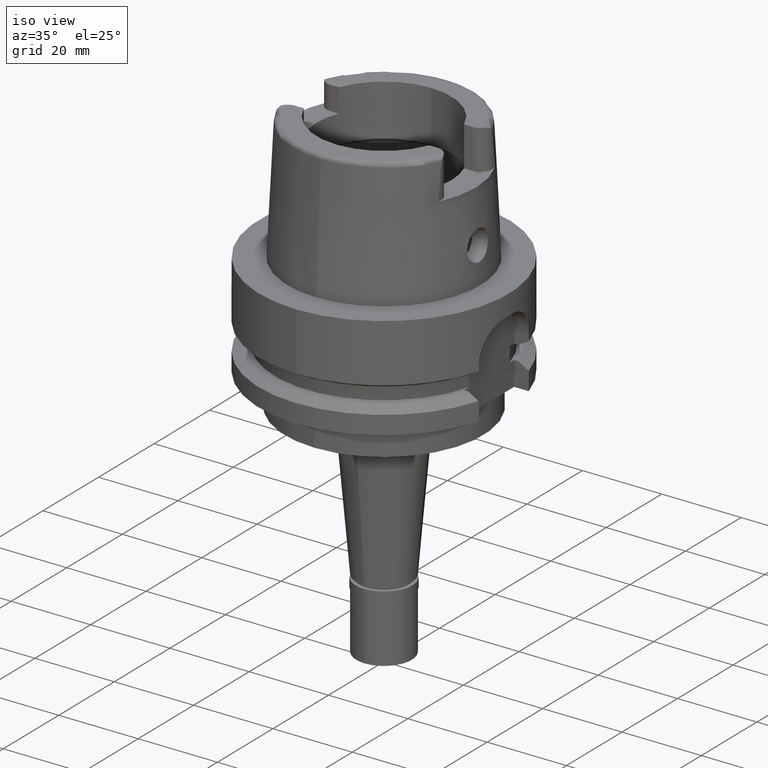
[diagram: clean part render]
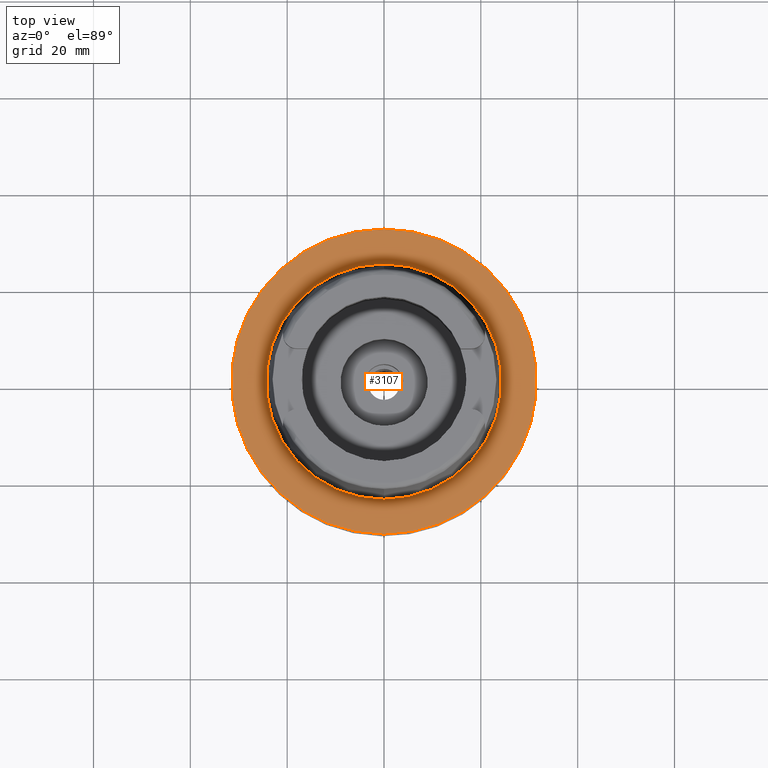
[diagram: tour spotlight — one face highlighted and labeled with its STEP entity id]
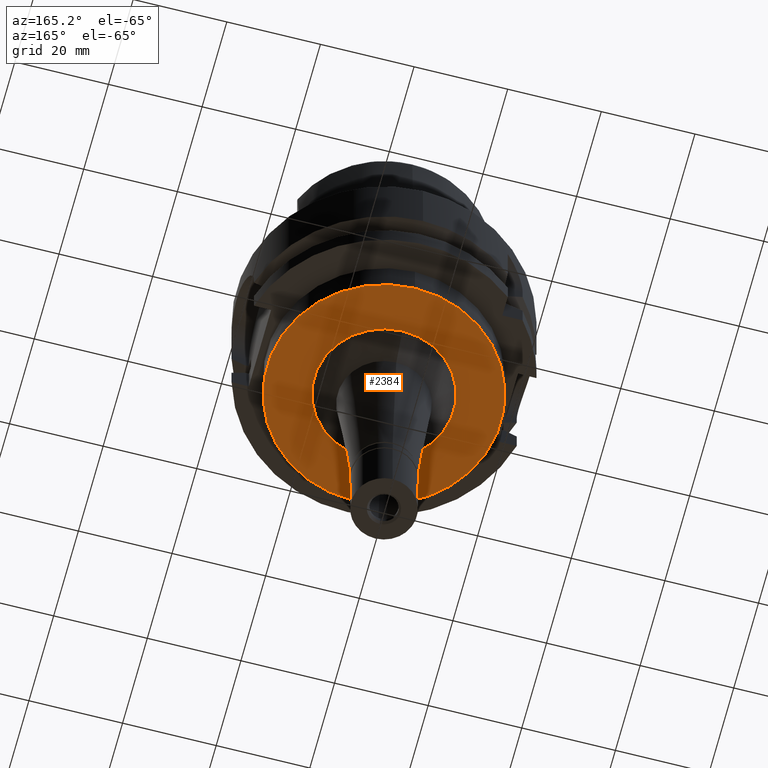
[diagram: tour spotlight — one face highlighted and labeled with its STEP entity id]
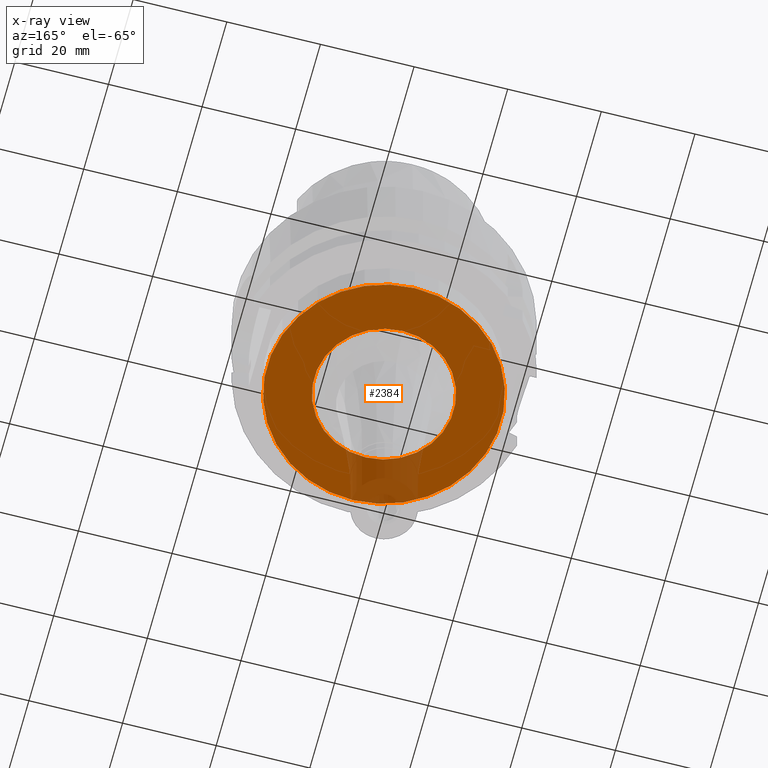
[diagram: x-ray of the same camera — body ghosted, this tour face saturated]
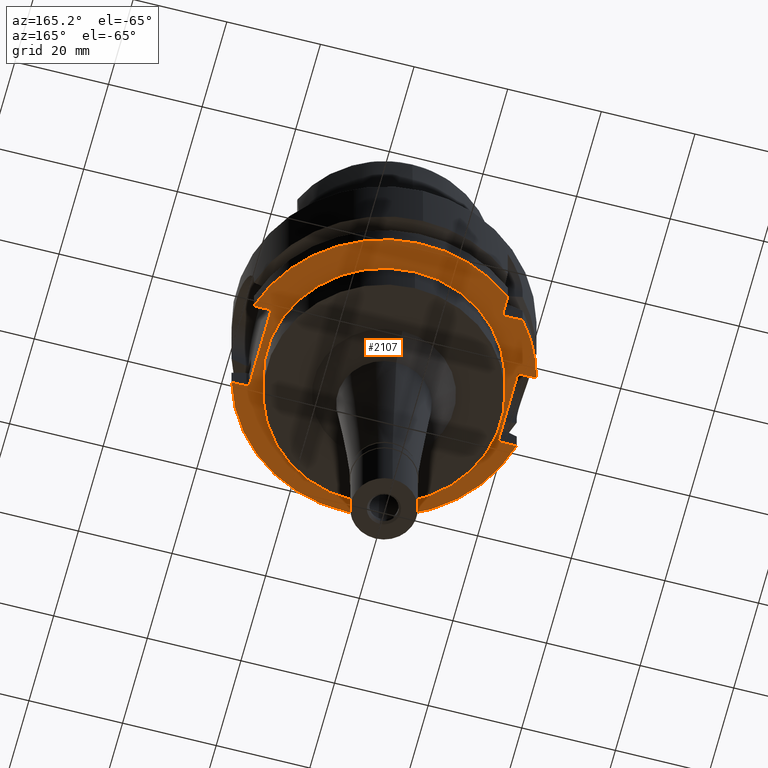
[diagram: tour spotlight — one face highlighted and labeled with its STEP entity id]
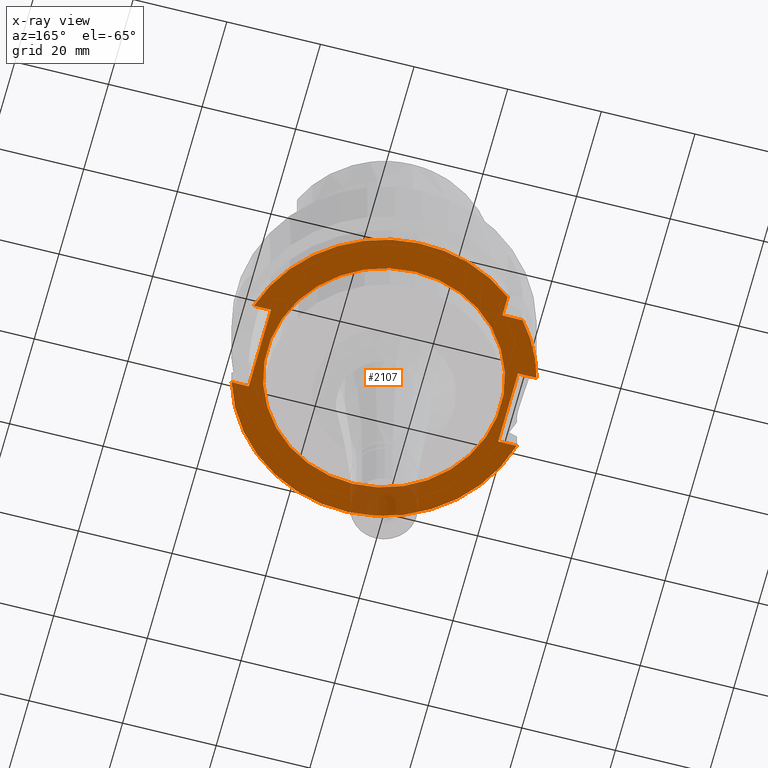
[diagram: x-ray of the same camera — body ghosted, this tour face saturated]
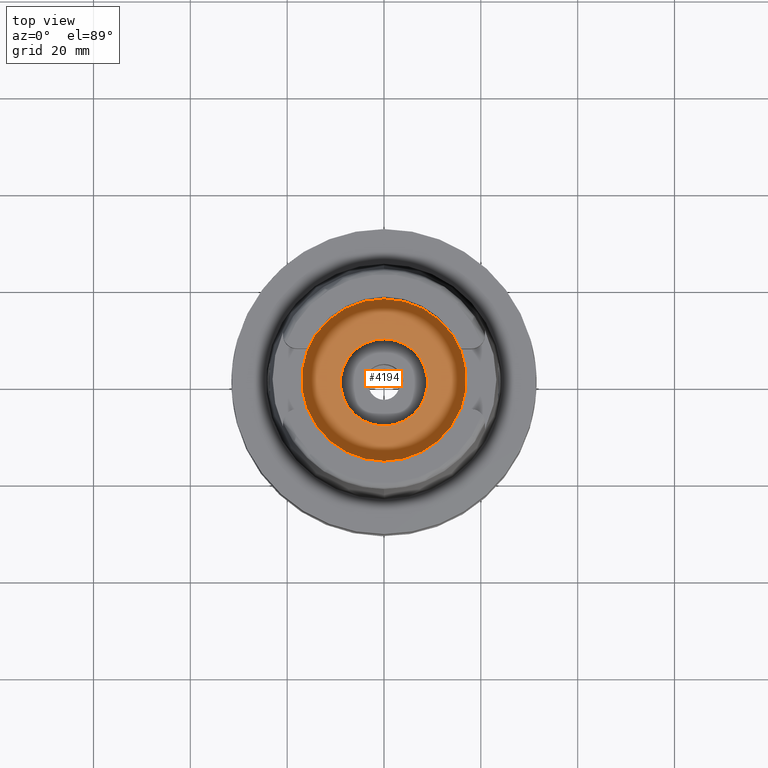
[diagram: tour spotlight — one face highlighted and labeled with its STEP entity id]
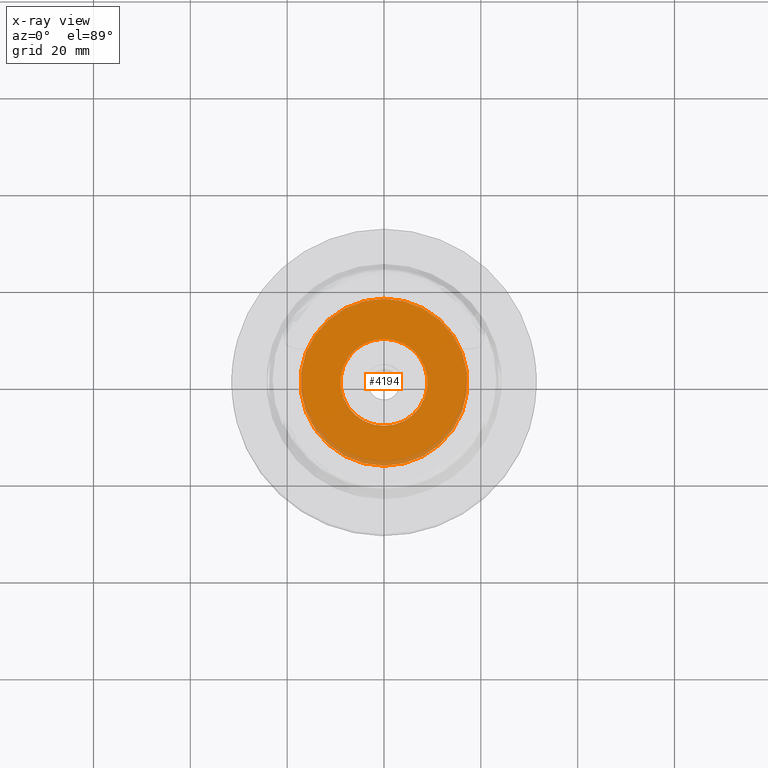
[diagram: x-ray of the same camera — body ghosted, this tour face saturated]
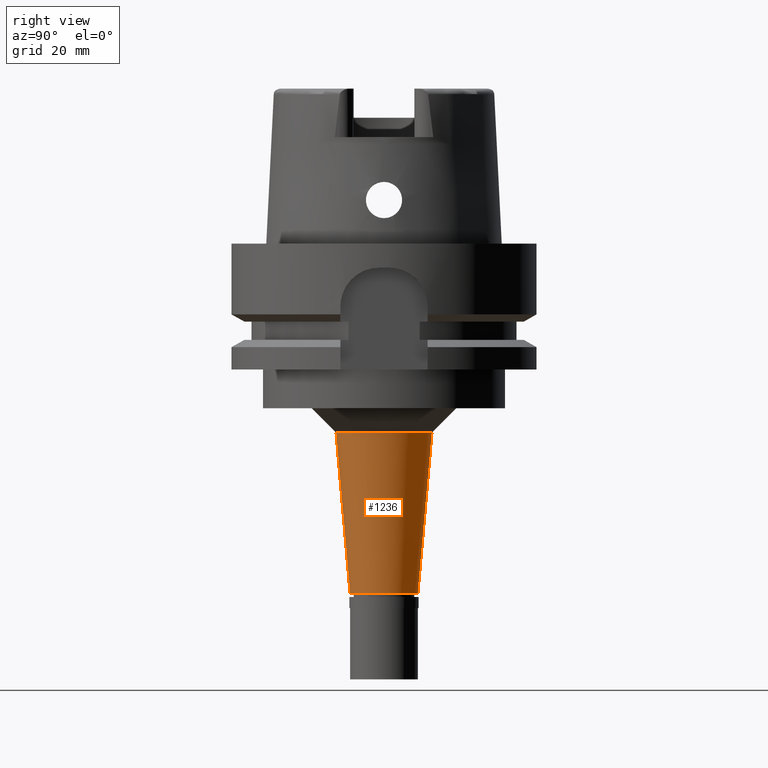
[diagram: tour spotlight — one face highlighted and labeled with its STEP entity id]
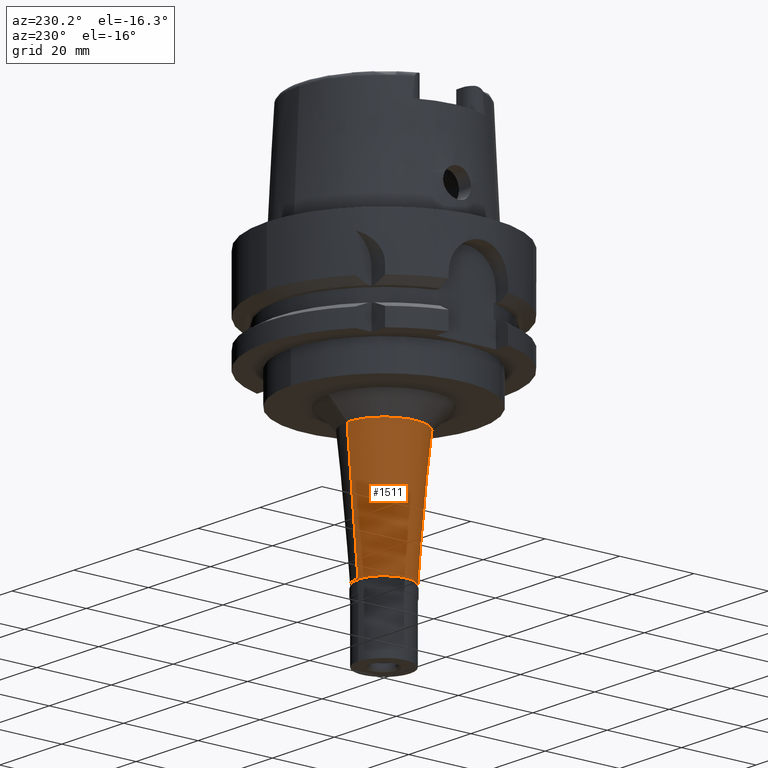
[diagram: tour spotlight — one face highlighted and labeled with its STEP entity id]
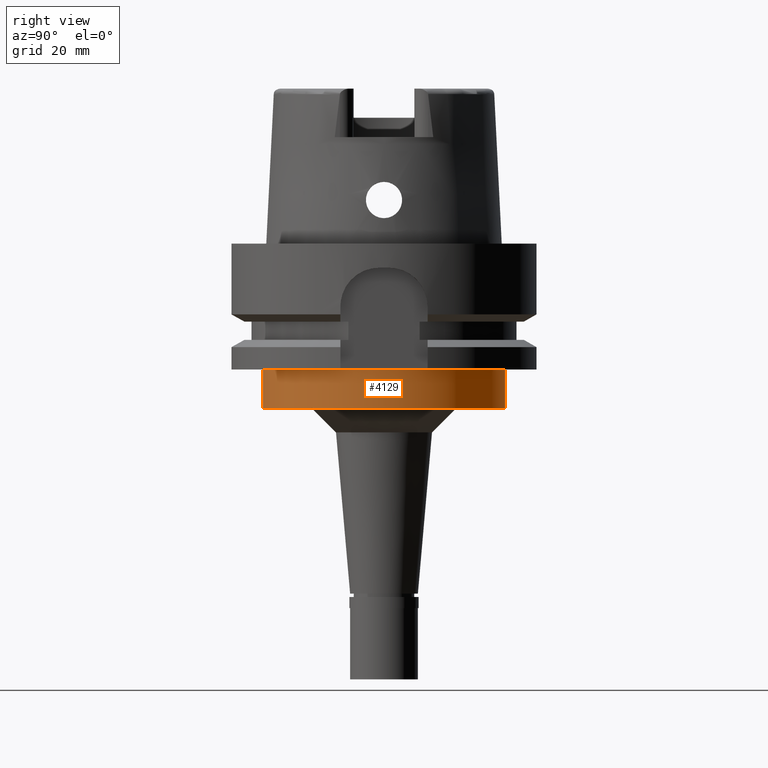
[diagram: tour spotlight — one face highlighted and labeled with its STEP entity id]
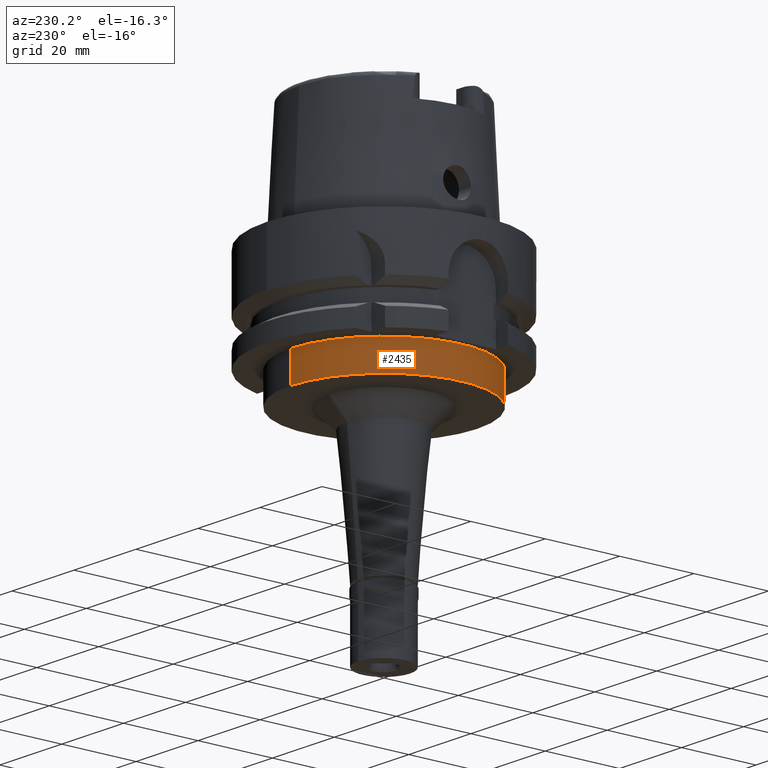
[diagram: tour spotlight — one face highlighted and labeled with its STEP entity id]
A machine part: a face-by-face anatomy tour. The part has 122 B-rep faces; the first image is the clean iso view, then the 8 largest visible faces are spotlighted one at a time (largest first), each with its STEP entity span.

Face 1 — top view, entity #3107. In plain terms, the highlighted planar face has unit normal (0, 0, -1).
Definition (entity closure, byte-faithful):
#28 = CARTESIAN_POINT ( 'NONE',  ( 0.0000000000000000000, -24.31503482328999866, 1.882938249763999678E-13 ) ) ;
#159 = ORIENTED_EDGE ( 'NONE', *, *, #2519, .F. ) ;
#268 = CARTESIAN_POINT ( 'NONE',  ( 0.0000000000000000000, 0.0000000000000000000, -8.526512829120999020E-14 ) ) ;
#716 = DIRECTION ( 'NONE',  ( 0.0000000000000000000, 0.0000000000000000000, -1.000000000000000000 ) ) ;
#727 = CIRCLE ( 'NONE', #3877, 31.50000000000000000 ) ;
#758 = AXIS2_PLACEMENT_3D ( 'NONE', #4545, #5055, #4141 ) ;
#769 = DIRECTION ( 'NONE',  ( 0.0000000000000000000, -1.000000000000000000, 0.0000000000000000000 ) ) ;
#1275 = EDGE_CURVE ( 'NONE', #2415, #3158, #3184, .T. ) ;
#1536 = DIRECTION ( 'NONE',  ( 0.0000000000000000000, -1.000000000000000000, 0.0000000000000000000 ) ) ;
#1553 = ORIENTED_EDGE ( 'NONE', *, *, #5075, .F. ) ;
#1609 = ORIENTED_EDGE ( 'NONE', *, *, #1275, .F. ) ;
#1719 = CARTESIAN_POINT ( 'NONE',  ( 0.0000000000000000000, 24.31503482328999866, 1.136868377215999875E-13 ) ) ;
#1720 = CARTESIAN_POINT ( 'NONE',  ( 0.0000000000000000000, 0.0000000000000000000, 0.0000000000000000000 ) ) ;
#1852 = CARTESIAN_POINT ( 'NONE',  ( 0.0000000000000000000, 0.0000000000000000000, 1.136868377215999875E-13 ) ) ;
#1964 = VERTEX_POINT ( 'NONE', #4305 ) ;
#2176 = CIRCLE ( 'NONE', #4704, 31.50000000000000000 ) ;
#2239 = EDGE_LOOP ( 'NONE', ( #4671, #1553 ) ) ;
#2415 = VERTEX_POINT ( 'NONE', #1719 ) ;
#2441 = EDGE_LOOP ( 'NONE', ( #1609, #159 ) ) ;
#2445 = CARTESIAN_POINT ( 'NONE',  ( 0.0000000000000000000, 31.50000000000000000, -8.526512829120999020E-14 ) ) ;
#2519 = EDGE_CURVE ( 'NONE', #3158, #2415, #3243, .T. ) ;
#2911 = FACE_OUTER_BOUND ( 'NONE', #2239, .T. ) ;
#3107 = ADVANCED_FACE ( 'NONE', ( #2911, #4705 ), #4619, .F. ) ;
#3158 = VERTEX_POINT ( 'NONE', #28 ) ;
#3184 = CIRCLE ( 'NONE', #758, 24.31503482328999866 ) ;
#3243 = CIRCLE ( 'NONE', #3873, 24.31503482328999866 ) ;
#3429 = AXIS2_PLACEMENT_3D ( 'NONE', #1720, #5532, #769 ) ;
#3648 = EDGE_CURVE ( 'NONE', #4426, #1964, #727, .T. ) ;
#3758 = DIRECTION ( 'NONE',  ( 0.0000000000000000000, 1.000000000000000000, 0.0000000000000000000 ) ) ;
#3873 = AXIS2_PLACEMENT_3D ( 'NONE', #1852, #4958, #1536 ) ;
#3877 = AXIS2_PLACEMENT_3D ( 'NONE', #4202, #716, #3758 ) ;
#4093 = DIRECTION ( 'NONE',  ( 0.0000000000000000000, -1.000000000000000000, 0.0000000000000000000 ) ) ;
#4141 = DIRECTION ( 'NONE',  ( 0.0000000000000000000, 1.000000000000000000, 0.0000000000000000000 ) ) ;
#4202 = CARTESIAN_POINT ( 'NONE',  ( 0.0000000000000000000, 0.0000000000000000000, -8.526512829120999020E-14 ) ) ;
#4305 = CARTESIAN_POINT ( 'NONE',  ( 0.0000000000000000000, -31.50000000000000000, -8.526512829120999020E-14 ) ) ;
#4426 = VERTEX_POINT ( 'NONE', #2445 ) ;
#4545 = CARTESIAN_POINT ( 'NONE',  ( 0.0000000000000000000, 0.0000000000000000000, 1.136868377215999875E-13 ) ) ;
#4619 = PLANE ( 'NONE',  #3429 ) ;
#4671 = ORIENTED_EDGE ( 'NONE', *, *, #3648, .F. ) ;
#4704 = AXIS2_PLACEMENT_3D ( 'NONE', #268, #5031, #4093 ) ;
#4705 = FACE_BOUND ( 'NONE', #2441, .T. ) ;
#4958 = DIRECTION ( 'NONE',  ( 0.0000000000000000000, 0.0000000000000000000, 1.000000000000000000 ) ) ;
#5031 = DIRECTION ( 'NONE',  ( 0.0000000000000000000, 0.0000000000000000000, -1.000000000000000000 ) ) ;
#5055 = DIRECTION ( 'NONE',  ( 0.0000000000000000000, 0.0000000000000000000, 1.000000000000000000 ) ) ;
#5075 = EDGE_CURVE ( 'NONE', #1964, #4426, #2176, .T. ) ;
#5532 = DIRECTION ( 'NONE',  ( 0.0000000000000000000, 0.0000000000000000000, -1.000000000000000000 ) ) ;

Face 2 — auxiliary view, entity #2384. An x-ray twin of the same camera follows (body ghosted, this face saturated) — the face is partly hidden behind the body. In plain terms, the highlighted planar face has unit normal (0, 0, -1).
Definition (entity closure, byte-faithful):
#284 = CARTESIAN_POINT ( 'NONE',  ( 0.0000000000000000000, 25.00000000000000000, -34.00000000000000000 ) ) ;
#315 = EDGE_LOOP ( 'NONE', ( #429, #642 ) ) ;
#429 = ORIENTED_EDGE ( 'NONE', *, *, #966, .F. ) ;
#534 = FACE_BOUND ( 'NONE', #315, .T. ) ;
#642 = ORIENTED_EDGE ( 'NONE', *, *, #3557, .F. ) ;
#943 = DIRECTION ( 'NONE',  ( 0.0000000000000000000, 1.000000000000000000, 0.0000000000000000000 ) ) ;
#966 = EDGE_CURVE ( 'NONE', #2177, #988, #4711, .T. ) ;
#988 = VERTEX_POINT ( 'NONE', #1311 ) ;
#1148 = CARTESIAN_POINT ( 'NONE',  ( 0.0000000000000000000, 0.0000000000000000000, -34.00000000000000000 ) ) ;
#1288 = DIRECTION ( 'NONE',  ( 0.0000000000000000000, -1.000000000000000000, 0.0000000000000000000 ) ) ;
#1311 = CARTESIAN_POINT ( 'NONE',  ( 0.0000000000000000000, -14.91337249540999998, -34.00000000000000000 ) ) ;
#1339 = EDGE_CURVE ( 'NONE', #5564, #4945, #2187, .T. ) ;
#1368 = CARTESIAN_POINT ( 'NONE',  ( 0.0000000000000000000, 0.0000000000000000000, -34.00000000000000000 ) ) ;
#1373 = ORIENTED_EDGE ( 'NONE', *, *, #5006, .F. ) ;
#1381 = AXIS2_PLACEMENT_3D ( 'NONE', #4598, #2402, #4115 ) ;
#1446 = CARTESIAN_POINT ( 'NONE',  ( 0.0000000000000000000, 0.0000000000000000000, -34.00000000000000000 ) ) ;
#1526 = AXIS2_PLACEMENT_3D ( 'NONE', #1446, #2381, #4015 ) ;
#1531 = AXIS2_PLACEMENT_3D ( 'NONE', #1368, #1748, #1288 ) ;
#1748 = DIRECTION ( 'NONE',  ( 0.0000000000000000000, 0.0000000000000000000, -1.000000000000000000 ) ) ;
#1782 = ORIENTED_EDGE ( 'NONE', *, *, #1339, .F. ) ;
#1907 = DIRECTION ( 'NONE',  ( 0.0000000000000000000, 1.000000000000000000, 0.0000000000000000000 ) ) ;
#2135 = PLANE ( 'NONE',  #1531 ) ;
#2177 = VERTEX_POINT ( 'NONE', #5131 ) ;
#2187 = CIRCLE ( 'NONE', #1381, 25.00000000000000000 ) ;
#2381 = DIRECTION ( 'NONE',  ( 0.0000000000000000000, 0.0000000000000000000, -1.000000000000000000 ) ) ;
#2384 = ADVANCED_FACE ( 'NONE', ( #4739, #534 ), #2135, .T. ) ;
#2402 = DIRECTION ( 'NONE',  ( 0.0000000000000000000, 0.0000000000000000000, 1.000000000000000000 ) ) ;
#2447 = AXIS2_PLACEMENT_3D ( 'NONE', #1148, #4965, #1907 ) ;
#3090 = DIRECTION ( 'NONE',  ( 0.0000000000000000000, 0.0000000000000000000, -1.000000000000000000 ) ) ;
#3557 = EDGE_CURVE ( 'NONE', #988, #2177, #3959, .T. ) ;
#3959 = CIRCLE ( 'NONE', #1526, 14.91337249540999998 ) ;
#4015 = DIRECTION ( 'NONE',  ( 0.0000000000000000000, -1.000000000000000000, 0.0000000000000000000 ) ) ;
#4115 = DIRECTION ( 'NONE',  ( 0.0000000000000000000, -1.000000000000000000, 0.0000000000000000000 ) ) ;
#4526 = AXIS2_PLACEMENT_3D ( 'NONE', #5178, #3090, #943 ) ;
#4598 = CARTESIAN_POINT ( 'NONE',  ( 0.0000000000000000000, 0.0000000000000000000, -34.00000000000000000 ) ) ;
#4711 = CIRCLE ( 'NONE', #4526, 14.91337249540999998 ) ;
#4739 = FACE_OUTER_BOUND ( 'NONE', #5471, .T. ) ;
#4791 = CIRCLE ( 'NONE', #2447, 25.00000000000000000 ) ;
#4945 = VERTEX_POINT ( 'NONE', #284 ) ;
#4965 = DIRECTION ( 'NONE',  ( 0.0000000000000000000, 0.0000000000000000000, 1.000000000000000000 ) ) ;
#5006 = EDGE_CURVE ( 'NONE', #4945, #5564, #4791, .T. ) ;
#5131 = CARTESIAN_POINT ( 'NONE',  ( 0.0000000000000000000, 14.91337249540999998, -34.00000000000000000 ) ) ;
#5178 = CARTESIAN_POINT ( 'NONE',  ( 0.0000000000000000000, 0.0000000000000000000, -34.00000000000000000 ) ) ;
#5389 = CARTESIAN_POINT ( 'NONE',  ( 0.0000000000000000000, -25.00000000000000000, -34.00000000000000000 ) ) ;
#5471 = EDGE_LOOP ( 'NONE', ( #1373, #1782 ) ) ;
#5564 = VERTEX_POINT ( 'NONE', #5389 ) ;

Face 3 — auxiliary view, entity #2107. An x-ray twin of the same camera follows (body ghosted, this face saturated) — the face is partly hidden behind the body. In plain terms, the highlighted planar face has unit normal (0, 0, -1).
Definition (entity closure, byte-faithful):
#16 = ORIENTED_EDGE ( 'NONE', *, *, #2482, .F. ) ;
#31 = EDGE_CURVE ( 'NONE', #636, #4066, #606, .T. ) ;
#81 = LINE ( 'NONE', #4763, #1350 ) ;
#82 = ORIENTED_EDGE ( 'NONE', *, *, #4102, .F. ) ;
#115 = VERTEX_POINT ( 'NONE', #4114 ) ;
#231 = ORIENTED_EDGE ( 'NONE', *, *, #2410, .T. ) ;
#259 = CARTESIAN_POINT ( 'NONE',  ( 0.0000000000000000000, -25.00000000000000000, -26.00000000000000000 ) ) ;
#334 = LINE ( 'NONE', #5487, #4689 ) ;
#377 = DIRECTION ( 'NONE',  ( -1.000000000000000000, -1.540316790609000194E-13, 0.0000000000000000000 ) ) ;
#411 = CIRCLE ( 'NONE', #1840, 25.00000000000000000 ) ;
#546 = CARTESIAN_POINT ( 'NONE',  ( -26.50000000000000000, 8.000000000000000000, -26.00000000000000000 ) ) ;
#606 = LINE ( 'NONE', #546, #3803 ) ;
#636 = VERTEX_POINT ( 'NONE', #1077 ) ;
#681 = CARTESIAN_POINT ( 'NONE',  ( 26.50000000000000000, -9.000000000000000000, -26.00000000000000000 ) ) ;
#773 = DIRECTION ( 'NONE',  ( 0.0000000000000000000, -1.000000000000000000, 0.0000000000000000000 ) ) ;
#789 = VERTEX_POINT ( 'NONE', #5065 ) ;
#1076 = AXIS2_PLACEMENT_3D ( 'NONE', #3208, #2785, #2306 ) ;
#1077 = CARTESIAN_POINT ( 'NONE',  ( -26.50000000000000000, 8.000000000000000000, -26.00000000000000000 ) ) ;
#1128 = DIRECTION ( 'NONE',  ( -1.000000000000000000, -7.226999566092000914E-14, 0.0000000000000000000 ) ) ;
#1154 = CARTESIAN_POINT ( 'NONE',  ( -20.00000000000000000, 20.00000000000000000, -26.00000000000000000 ) ) ;
#1205 = CIRCLE ( 'NONE', #1922, 25.00000000000000000 ) ;
#1214 = CARTESIAN_POINT ( 'NONE',  ( 30.18691769625000276, 9.000000000000000000, -26.00000000000000000 ) ) ;
#1233 = DIRECTION ( 'NONE',  ( 0.0000000000000000000, 0.0000000000000000000, -1.000000000000000000 ) ) ;
#1280 = DIRECTION ( 'NONE',  ( 0.0000000000000000000, 1.000000000000000000, 0.0000000000000000000 ) ) ;
#1346 = VECTOR ( 'NONE', #4064, 1000.000000000000000 ) ;
#1350 = VECTOR ( 'NONE', #2616, 1000.000000000000000 ) ;
#1363 = DIRECTION ( 'NONE',  ( 0.0000000000000000000, 0.0000000000000000000, 1.000000000000000000 ) ) ;
#1390 = ORIENTED_EDGE ( 'NONE', *, *, #5490, .F. ) ;
#1434 = CARTESIAN_POINT ( 'NONE',  ( 30.18691769625000276, -9.000000000000000000, -26.00000000000000000 ) ) ;
#1491 = ORIENTED_EDGE ( 'NONE', *, *, #3719, .F. ) ;
#1493 = DIRECTION ( 'NONE',  ( -0.7725773665802099233, 0.6349206349206079070, 0.0000000000000000000 ) ) ;
#1615 = DIRECTION ( 'NONE',  ( 0.0000000000000000000, 1.000000000000000000, 0.0000000000000000000 ) ) ;
#1649 = CARTESIAN_POINT ( 'NONE',  ( -26.50000000000000000, -8.000000000000000000, -26.00000000000000000 ) ) ;
#1655 = VECTOR ( 'NONE', #1128, 1000.000000000000000 ) ;
#1687 = EDGE_CURVE ( 'NONE', #4345, #115, #1205, .T. ) ;
#1722 = CIRCLE ( 'NONE', #2157, 31.50000000000000000 ) ;
#1758 = EDGE_CURVE ( 'NONE', #3670, #2553, #4220, .T. ) ;
#1840 = AXIS2_PLACEMENT_3D ( 'NONE', #4362, #3050, #4415 ) ;
#1858 = FACE_OUTER_BOUND ( 'NONE', #2606, .T. ) ;
#1922 = AXIS2_PLACEMENT_3D ( 'NONE', #4195, #5506, #773 ) ;
#1930 = EDGE_CURVE ( 'NONE', #115, #4345, #411, .T. ) ;
#2107 = ADVANCED_FACE ( 'NONE', ( #1858, #3579 ), #5023, .T. ) ;
#2157 = AXIS2_PLACEMENT_3D ( 'NONE', #4352, #1363, #1280 ) ;
#2164 = EDGE_CURVE ( 'NONE', #4184, #2882, #5046, .T. ) ;
#2169 = ORIENTED_EDGE ( 'NONE', *, *, #1687, .F. ) ;
#2228 = LINE ( 'NONE', #3056, #2892 ) ;
#2246 = EDGE_LOOP ( 'NONE', ( #2901, #2169 ) ) ;
#2306 = DIRECTION ( 'NONE',  ( 0.0000000000000000000, -1.000000000000000000, 0.0000000000000000000 ) ) ;
#2316 = CARTESIAN_POINT ( 'NONE',  ( 26.50000000000000000, 9.000000000000000000, -26.00000000000000000 ) ) ;
#2321 = DIRECTION ( 'NONE',  ( -1.000000000000000000, 8.686570378870000015E-14, 0.0000000000000000000 ) ) ;
#2410 = EDGE_CURVE ( 'NONE', #2749, #636, #81, .T. ) ;
#2482 = EDGE_CURVE ( 'NONE', #2506, #789, #2708, .T. ) ;
#2506 = VERTEX_POINT ( 'NONE', #4022 ) ;
#2510 = ORIENTED_EDGE ( 'NONE', *, *, #1758, .F. ) ;
#2553 = VERTEX_POINT ( 'NONE', #3257 ) ;
#2566 = CARTESIAN_POINT ( 'NONE',  ( 30.18691769625000276, 9.000000000000000000, -26.00000000000000000 ) ) ;
#2606 = EDGE_LOOP ( 'NONE', ( #5308, #3770, #1491, #1390, #16, #3286, #231, #4666, #82, #2510, #5214 ) ) ;
#2616 = DIRECTION ( 'NONE',  ( 0.0000000000000000000, 1.000000000000000000, 0.0000000000000000000 ) ) ;
#2656 = EDGE_CURVE ( 'NONE', #4184, #2662, #1722, .T. ) ;
#2662 = VERTEX_POINT ( 'NONE', #5574 ) ;
#2684 = DIRECTION ( 'NONE',  ( 0.0000000000000000000, 0.0000000000000000000, 1.000000000000000000 ) ) ;
#2708 = CIRCLE ( 'NONE', #1076, 31.50000000000000000 ) ;
#2749 = VERTEX_POINT ( 'NONE', #1649 ) ;
#2785 = DIRECTION ( 'NONE',  ( 0.0000000000000000000, 0.0000000000000000000, 1.000000000000000000 ) ) ;
#2882 = VERTEX_POINT ( 'NONE', #2316 ) ;
#2890 = AXIS2_PLACEMENT_3D ( 'NONE', #3746, #1233, #5501 ) ;
#2892 = VECTOR ( 'NONE', #3446, 1000.000000000000000 ) ;
#2901 = ORIENTED_EDGE ( 'NONE', *, *, #1930, .F. ) ;
#2949 = CARTESIAN_POINT ( 'NONE',  ( -20.00000000000000000, 20.00000000000000000, -26.00000000000000000 ) ) ;
#2991 = AXIS2_PLACEMENT_3D ( 'NONE', #4483, #2684, #1493 ) ;
#3050 = DIRECTION ( 'NONE',  ( 0.0000000000000000000, 0.0000000000000000000, -1.000000000000000000 ) ) ;
#3056 = CARTESIAN_POINT ( 'NONE',  ( -20.00000000000000000, 20.00000000000000000, -26.00000000000000000 ) ) ;
#3117 = CARTESIAN_POINT ( 'NONE',  ( -30.46719547316000032, 8.000000000000000000, -26.00000000000000000 ) ) ;
#3163 = LINE ( 'NONE', #1434, #1655 ) ;
#3171 = CARTESIAN_POINT ( 'NONE',  ( -26.50000000000000000, -8.000000000000000000, -26.00000000000000000 ) ) ;
#3208 = CARTESIAN_POINT ( 'NONE',  ( 0.0000000000000000000, 0.0000000000000000000, -26.00000000000000000 ) ) ;
#3257 = CARTESIAN_POINT ( 'NONE',  ( -24.33618704727619786, 19.99999999999964828, -26.00000000000000000 ) ) ;
#3286 = ORIENTED_EDGE ( 'NONE', *, *, #3481, .F. ) ;
#3343 = CIRCLE ( 'NONE', #2991, 31.50000000000000711 ) ;
#3446 = DIRECTION ( 'NONE',  ( 1.540316790609000194E-13, 1.000000000000000000, 0.0000000000000000000 ) ) ;
#3481 = EDGE_CURVE ( 'NONE', #2749, #2506, #3797, .T. ) ;
#3579 = FACE_BOUND ( 'NONE', #2246, .T. ) ;
#3670 = VERTEX_POINT ( 'NONE', #2949 ) ;
#3719 = EDGE_CURVE ( 'NONE', #5486, #2882, #334, .T. ) ;
#3746 = CARTESIAN_POINT ( 'NONE',  ( 0.0000000000000000000, 0.0000000000000000000, -26.00000000000000000 ) ) ;
#3770 = ORIENTED_EDGE ( 'NONE', *, *, #2164, .T. ) ;
#3788 = EDGE_CURVE ( 'NONE', #3670, #2662, #2228, .T. ) ;
#3797 = LINE ( 'NONE', #3171, #1346 ) ;
#3803 = VECTOR ( 'NONE', #2321, 1000.000000000000000 ) ;
#4022 = CARTESIAN_POINT ( 'NONE',  ( -30.46719547316000032, -8.000000000000000000, -26.00000000000000000 ) ) ;
#4064 = DIRECTION ( 'NONE',  ( -1.000000000000000000, -8.776122650817999518E-14, 0.0000000000000000000 ) ) ;
#4066 = VERTEX_POINT ( 'NONE', #3117 ) ;
#4102 = EDGE_CURVE ( 'NONE', #2553, #4066, #3343, .T. ) ;
#4114 = CARTESIAN_POINT ( 'NONE',  ( 0.0000000000000000000, 25.00000000000000000, -26.00000000000000000 ) ) ;
#4184 = VERTEX_POINT ( 'NONE', #1214 ) ;
#4195 = CARTESIAN_POINT ( 'NONE',  ( 0.0000000000000000000, 0.0000000000000000000, -26.00000000000000000 ) ) ;
#4220 = LINE ( 'NONE', #1154, #4537 ) ;
#4345 = VERTEX_POINT ( 'NONE', #259 ) ;
#4352 = CARTESIAN_POINT ( 'NONE',  ( 0.0000000000000000000, 0.0000000000000000000, -26.00000000000000000 ) ) ;
#4362 = CARTESIAN_POINT ( 'NONE',  ( 0.0000000000000000000, 0.0000000000000000000, -26.00000000000000000 ) ) ;
#4415 = DIRECTION ( 'NONE',  ( 0.0000000000000000000, 1.000000000000000000, 0.0000000000000000000 ) ) ;
#4483 = CARTESIAN_POINT ( 'NONE',  ( 0.0000000000000000000, 0.0000000000000000000, -26.00000000000000000 ) ) ;
#4537 = VECTOR ( 'NONE', #377, 1000.000000000000000 ) ;
#4666 = ORIENTED_EDGE ( 'NONE', *, *, #31, .T. ) ;
#4669 = DIRECTION ( 'NONE',  ( -1.000000000000000000, 6.889739586341000002E-14, 0.0000000000000000000 ) ) ;
#4689 = VECTOR ( 'NONE', #1615, 1000.000000000000000 ) ;
#4763 = CARTESIAN_POINT ( 'NONE',  ( -26.50000000000000000, -8.000000000000000000, -26.00000000000000000 ) ) ;
#4874 = VECTOR ( 'NONE', #4669, 1000.000000000000000 ) ;
#5023 = PLANE ( 'NONE',  #2890 ) ;
#5046 = LINE ( 'NONE', #2566, #4874 ) ;
#5065 = CARTESIAN_POINT ( 'NONE',  ( 30.18691769625000276, -9.000000000000000000, -26.00000000000000000 ) ) ;
#5214 = ORIENTED_EDGE ( 'NONE', *, *, #3788, .T. ) ;
#5308 = ORIENTED_EDGE ( 'NONE', *, *, #2656, .F. ) ;
#5486 = VERTEX_POINT ( 'NONE', #681 ) ;
#5487 = CARTESIAN_POINT ( 'NONE',  ( 26.50000000000000000, -9.000000000000000000, -26.00000000000000000 ) ) ;
#5490 = EDGE_CURVE ( 'NONE', #789, #5486, #3163, .T. ) ;
#5501 = DIRECTION ( 'NONE',  ( 0.0000000000000000000, -1.000000000000000000, 0.0000000000000000000 ) ) ;
#5506 = DIRECTION ( 'NONE',  ( 0.0000000000000000000, 0.0000000000000000000, -1.000000000000000000 ) ) ;
#5574 = CARTESIAN_POINT ( 'NONE',  ( -20.00000000000000000, 24.33618704727999926, -26.00000000000000000 ) ) ;

Face 4 — top view, entity #4194. An x-ray twin of the same camera follows (body ghosted, this face saturated) — the face is partly hidden behind the body. In plain terms, the highlighted planar face has unit normal (0, 0, -1).
Definition (entity closure, byte-faithful):
#233 = CARTESIAN_POINT ( 'NONE',  ( 0.0000000000000000000, 9.000000000000000000, -9.950000000000001066 ) ) ;
#312 = CARTESIAN_POINT ( 'NONE',  ( 0.0000000000000000000, 0.0000000000000000000, -9.950000000000001066 ) ) ;
#497 = DIRECTION ( 'NONE',  ( 0.0000000000000000000, 1.000000000000000000, 0.0000000000000000000 ) ) ;
#587 = CIRCLE ( 'NONE', #5452, 9.000000000000000000 ) ;
#737 = AXIS2_PLACEMENT_3D ( 'NONE', #1808, #1329, #497 ) ;
#760 = EDGE_LOOP ( 'NONE', ( #924, #5364 ) ) ;
#768 = EDGE_CURVE ( 'NONE', #3203, #4868, #4167, .T. ) ;
#772 = DIRECTION ( 'NONE',  ( 0.0000000000000000000, -1.000000000000000000, 0.0000000000000000000 ) ) ;
#797 = CARTESIAN_POINT ( 'NONE',  ( 0.0000000000000000000, 0.0000000000000000000, -9.950000000000001066 ) ) ;
#856 = ORIENTED_EDGE ( 'NONE', *, *, #3929, .F. ) ;
#882 = DIRECTION ( 'NONE',  ( 0.0000000000000000000, 0.0000000000000000000, 1.000000000000000000 ) ) ;
#924 = ORIENTED_EDGE ( 'NONE', *, *, #1862, .F. ) ;
#1065 = EDGE_LOOP ( 'NONE', ( #856, #3475 ) ) ;
#1329 = DIRECTION ( 'NONE',  ( 0.0000000000000000000, 0.0000000000000000000, -1.000000000000000000 ) ) ;
#1682 = CARTESIAN_POINT ( 'NONE',  ( 0.0000000000000000000, 0.0000000000000000000, -9.950000000000001066 ) ) ;
#1808 = CARTESIAN_POINT ( 'NONE',  ( 0.0000000000000000000, 0.0000000000000000000, -9.950000000000001066 ) ) ;
#1817 = AXIS2_PLACEMENT_3D ( 'NONE', #312, #2469, #2021 ) ;
#1862 = EDGE_CURVE ( 'NONE', #4868, #3203, #587, .T. ) ;
#1912 = AXIS2_PLACEMENT_3D ( 'NONE', #1682, #3394, #4605 ) ;
#1947 = CARTESIAN_POINT ( 'NONE',  ( 0.0000000000000000000, -9.000000000000000000, -9.950000000000001066 ) ) ;
#2021 = DIRECTION ( 'NONE',  ( 0.0000000000000000000, -1.000000000000000000, 0.0000000000000000000 ) ) ;
#2170 = VERTEX_POINT ( 'NONE', #3714 ) ;
#2469 = DIRECTION ( 'NONE',  ( 0.0000000000000000000, 0.0000000000000000000, -1.000000000000000000 ) ) ;
#2508 = DIRECTION ( 'NONE',  ( 0.0000000000000000000, 0.0000000000000000000, -1.000000000000000000 ) ) ;
#2827 = PLANE ( 'NONE',  #3164 ) ;
#2915 = FACE_OUTER_BOUND ( 'NONE', #1065, .T. ) ;
#3077 = CARTESIAN_POINT ( 'NONE',  ( 0.0000000000000000000, 0.0000000000000000000, -9.950000000000001066 ) ) ;
#3164 = AXIS2_PLACEMENT_3D ( 'NONE', #797, #2508, #772 ) ;
#3203 = VERTEX_POINT ( 'NONE', #1947 ) ;
#3297 = CARTESIAN_POINT ( 'NONE',  ( 0.0000000000000000000, 17.25000000000000000, -9.950000000000001066 ) ) ;
#3394 = DIRECTION ( 'NONE',  ( 0.0000000000000000000, 0.0000000000000000000, 1.000000000000000000 ) ) ;
#3438 = DIRECTION ( 'NONE',  ( 0.0000000000000000000, 1.000000000000000000, 0.0000000000000000000 ) ) ;
#3475 = ORIENTED_EDGE ( 'NONE', *, *, #4761, .F. ) ;
#3714 = CARTESIAN_POINT ( 'NONE',  ( 0.0000000000000000000, -17.25000000000000000, -9.950000000000001066 ) ) ;
#3929 = EDGE_CURVE ( 'NONE', #4315, #2170, #4053, .T. ) ;
#4053 = CIRCLE ( 'NONE', #737, 17.25000000000000000 ) ;
#4167 = CIRCLE ( 'NONE', #1912, 9.000000000000000000 ) ;
#4194 = ADVANCED_FACE ( 'NONE', ( #2915, #4652 ), #2827, .F. ) ;
#4315 = VERTEX_POINT ( 'NONE', #3297 ) ;
#4512 = CIRCLE ( 'NONE', #1817, 17.25000000000000000 ) ;
#4605 = DIRECTION ( 'NONE',  ( 0.0000000000000000000, -1.000000000000000000, 0.0000000000000000000 ) ) ;
#4652 = FACE_BOUND ( 'NONE', #760, .T. ) ;
#4761 = EDGE_CURVE ( 'NONE', #2170, #4315, #4512, .T. ) ;
#4868 = VERTEX_POINT ( 'NONE', #233 ) ;
#5364 = ORIENTED_EDGE ( 'NONE', *, *, #768, .F. ) ;
#5452 = AXIS2_PLACEMENT_3D ( 'NONE', #3077, #882, #3438 ) ;

Face 5 — right view, entity #1236. In plain terms, the highlighted conical surface has half-angle 5 deg.
Definition (entity closure, byte-faithful):
#131 = CARTESIAN_POINT ( 'NONE',  ( 0.0000000000000000000, -9.913372495413000252, -39.00000000000000000 ) ) ;
#152 = EDGE_CURVE ( 'NONE', #4148, #4427, #5426, .T. ) ;
#293 = AXIS2_PLACEMENT_3D ( 'NONE', #559, #2274, #3989 ) ;
#481 = ORIENTED_EDGE ( 'NONE', *, *, #1433, .F. ) ;
#559 = CARTESIAN_POINT ( 'NONE',  ( 0.0000000000000000000, 0.0000000000000000000, -72.29999999999999716 ) ) ;
#629 = VERTEX_POINT ( 'NONE', #5347 ) ;
#646 = CARTESIAN_POINT ( 'NONE',  ( 0.0000000000000000000, 7.000000000000000000, -72.29999999999999716 ) ) ;
#929 = ORIENTED_EDGE ( 'NONE', *, *, #152, .F. ) ;
#1016 = AXIS2_PLACEMENT_3D ( 'NONE', #4839, #1468, #3196 ) ;
#1041 = FACE_OUTER_BOUND ( 'NONE', #5533, .T. ) ;
#1061 = VERTEX_POINT ( 'NONE', #131 ) ;
#1207 = LINE ( 'NONE', #2029, #2538 ) ;
#1236 = ADVANCED_FACE ( 'NONE', ( #1041 ), #1917, .T. ) ;
#1433 = EDGE_CURVE ( 'NONE', #1061, #4148, #4442, .T. ) ;
#1468 = DIRECTION ( 'NONE',  ( 0.0000000000000000000, 0.0000000000000000000, 1.000000000000000000 ) ) ;
#1642 = CARTESIAN_POINT ( 'NONE',  ( 0.0000000000000000000, 9.913372495413000252, -39.00000000000000000 ) ) ;
#1824 = VECTOR ( 'NONE', #3244, 1000.000000000000114 ) ;
#1917 = CONICAL_SURFACE ( 'NONE', #1016, 8.456686247707001058, 0.08726646259969973729 ) ;
#2029 = CARTESIAN_POINT ( 'NONE',  ( 0.0000000000000000000, -9.913372495413000252, -39.00000000000000000 ) ) ;
#2274 = DIRECTION ( 'NONE',  ( 0.0000000000000000000, 0.0000000000000000000, 1.000000000000000000 ) ) ;
#2514 = CARTESIAN_POINT ( 'NONE',  ( 0.0000000000000000000, 0.0000000000000000000, -39.00000000000000000 ) ) ;
#2538 = VECTOR ( 'NONE', #4590, 1000.000000000000114 ) ;
#2643 = AXIS2_PLACEMENT_3D ( 'NONE', #2514, #3443, #3414 ) ;
#3196 = DIRECTION ( 'NONE',  ( 0.0000000000000000000, 1.000000000000000000, 0.0000000000000000000 ) ) ;
#3244 = DIRECTION ( 'NONE',  ( 0.0000000000000000000, -0.08715574274763414342, -0.9961946980917475436 ) ) ;
#3414 = DIRECTION ( 'NONE',  ( 0.0000000000000000000, -1.000000000000000000, 0.0000000000000000000 ) ) ;
#3443 = DIRECTION ( 'NONE',  ( 0.0000000000000000000, 0.0000000000000000000, 1.000000000000000000 ) ) ;
#3989 = DIRECTION ( 'NONE',  ( 0.0000000000000000000, -1.000000000000000000, 0.0000000000000000000 ) ) ;
#4057 = ORIENTED_EDGE ( 'NONE', *, *, #4402, .T. ) ;
#4086 = CARTESIAN_POINT ( 'NONE',  ( 0.0000000000000000000, 9.913372495413000252, -39.00000000000000000 ) ) ;
#4148 = VERTEX_POINT ( 'NONE', #4086 ) ;
#4402 = EDGE_CURVE ( 'NONE', #1061, #629, #1207, .T. ) ;
#4427 = VERTEX_POINT ( 'NONE', #646 ) ;
#4442 = CIRCLE ( 'NONE', #2643, 9.913372495414002117 ) ;
#4590 = DIRECTION ( 'NONE',  ( 0.0000000000000000000, 0.08715574274763414342, -0.9961946980917475436 ) ) ;
#4651 = EDGE_CURVE ( 'NONE', #629, #4427, #5061, .T. ) ;
#4839 = CARTESIAN_POINT ( 'NONE',  ( 0.0000000000000000000, 0.0000000000000000000, -55.64999999999999858 ) ) ;
#5061 = CIRCLE ( 'NONE', #293, 7.000000000000000000 ) ;
#5133 = ORIENTED_EDGE ( 'NONE', *, *, #4651, .T. ) ;
#5347 = CARTESIAN_POINT ( 'NONE',  ( 0.0000000000000000000, -7.000000000000000000, -72.29999999999999716 ) ) ;
#5426 = LINE ( 'NONE', #1642, #1824 ) ;
#5533 = EDGE_LOOP ( 'NONE', ( #481, #4057, #5133, #929 ) ) ;

Face 6 — auxiliary view, entity #1511. In plain terms, the highlighted conical surface has half-angle 5 deg.
Definition (entity closure, byte-faithful):
#117 = CARTESIAN_POINT ( 'NONE',  ( 0.0000000000000000000, 0.0000000000000000000, -39.00000000000000000 ) ) ;
#131 = CARTESIAN_POINT ( 'NONE',  ( 0.0000000000000000000, -9.913372495413000252, -39.00000000000000000 ) ) ;
#152 = EDGE_CURVE ( 'NONE', #4148, #4427, #5426, .T. ) ;
#326 = EDGE_CURVE ( 'NONE', #1061, #4148, #4339, .T. ) ;
#403 = CONICAL_SURFACE ( 'NONE', #1110, 8.456686247707001058, 0.08726646259969973729 ) ;
#419 = ORIENTED_EDGE ( 'NONE', *, *, #152, .T. ) ;
#439 = DIRECTION ( 'NONE',  ( 0.0000000000000000000, 0.0000000000000000000, 1.000000000000000000 ) ) ;
#629 = VERTEX_POINT ( 'NONE', #5347 ) ;
#646 = CARTESIAN_POINT ( 'NONE',  ( 0.0000000000000000000, 7.000000000000000000, -72.29999999999999716 ) ) ;
#861 = DIRECTION ( 'NONE',  ( 0.0000000000000000000, 1.000000000000000000, 0.0000000000000000000 ) ) ;
#937 = CARTESIAN_POINT ( 'NONE',  ( 0.0000000000000000000, 0.0000000000000000000, -55.64999999999999858 ) ) ;
#1061 = VERTEX_POINT ( 'NONE', #131 ) ;
#1110 = AXIS2_PLACEMENT_3D ( 'NONE', #937, #3865, #1729 ) ;
#1207 = LINE ( 'NONE', #2029, #2538 ) ;
#1241 = DIRECTION ( 'NONE',  ( 0.0000000000000000000, 0.0000000000000000000, -1.000000000000000000 ) ) ;
#1380 = ORIENTED_EDGE ( 'NONE', *, *, #4402, .F. ) ;
#1511 = ADVANCED_FACE ( 'NONE', ( #1677 ), #403, .T. ) ;
#1642 = CARTESIAN_POINT ( 'NONE',  ( 0.0000000000000000000, 9.913372495413000252, -39.00000000000000000 ) ) ;
#1677 = FACE_OUTER_BOUND ( 'NONE', #2579, .T. ) ;
#1729 = DIRECTION ( 'NONE',  ( 0.0000000000000000000, 1.000000000000000000, 0.0000000000000000000 ) ) ;
#1824 = VECTOR ( 'NONE', #3244, 1000.000000000000114 ) ;
#1828 = DIRECTION ( 'NONE',  ( 0.0000000000000000000, -1.000000000000000000, 0.0000000000000000000 ) ) ;
#2029 = CARTESIAN_POINT ( 'NONE',  ( 0.0000000000000000000, -9.913372495413000252, -39.00000000000000000 ) ) ;
#2515 = CARTESIAN_POINT ( 'NONE',  ( 0.0000000000000000000, 0.0000000000000000000, -72.29999999999999716 ) ) ;
#2538 = VECTOR ( 'NONE', #4590, 1000.000000000000114 ) ;
#2579 = EDGE_LOOP ( 'NONE', ( #4798, #1380, #4155, #419 ) ) ;
#3244 = DIRECTION ( 'NONE',  ( 0.0000000000000000000, -0.08715574274763414342, -0.9961946980917475436 ) ) ;
#3258 = AXIS2_PLACEMENT_3D ( 'NONE', #2515, #439, #861 ) ;
#3353 = CIRCLE ( 'NONE', #3258, 7.000000000000000000 ) ;
#3865 = DIRECTION ( 'NONE',  ( 0.0000000000000000000, 0.0000000000000000000, 1.000000000000000000 ) ) ;
#4086 = CARTESIAN_POINT ( 'NONE',  ( 0.0000000000000000000, 9.913372495413000252, -39.00000000000000000 ) ) ;
#4148 = VERTEX_POINT ( 'NONE', #4086 ) ;
#4154 = AXIS2_PLACEMENT_3D ( 'NONE', #117, #1241, #1828 ) ;
#4155 = ORIENTED_EDGE ( 'NONE', *, *, #326, .T. ) ;
#4339 = CIRCLE ( 'NONE', #4154, 9.913372495411000074 ) ;
#4402 = EDGE_CURVE ( 'NONE', #1061, #629, #1207, .T. ) ;
#4427 = VERTEX_POINT ( 'NONE', #646 ) ;
#4590 = DIRECTION ( 'NONE',  ( 0.0000000000000000000, 0.08715574274763414342, -0.9961946980917475436 ) ) ;
#4798 = ORIENTED_EDGE ( 'NONE', *, *, #5344, .T. ) ;
#5344 = EDGE_CURVE ( 'NONE', #4427, #629, #3353, .T. ) ;
#5347 = CARTESIAN_POINT ( 'NONE',  ( 0.0000000000000000000, -7.000000000000000000, -72.29999999999999716 ) ) ;
#5426 = LINE ( 'NONE', #1642, #1824 ) ;

Face 7 — right view, entity #4129. In plain terms, the highlighted cylindrical surface (partial cylindrical patch) has radius 25 mm, axis along (0, 0, -1).
Definition (entity closure, byte-faithful):
#115 = VERTEX_POINT ( 'NONE', #4114 ) ;
#181 = DIRECTION ( 'NONE',  ( 0.0000000000000000000, -1.000000000000000000, 0.0000000000000000000 ) ) ;
#259 = CARTESIAN_POINT ( 'NONE',  ( 0.0000000000000000000, -25.00000000000000000, -26.00000000000000000 ) ) ;
#284 = CARTESIAN_POINT ( 'NONE',  ( 0.0000000000000000000, 25.00000000000000000, -34.00000000000000000 ) ) ;
#304 = CARTESIAN_POINT ( 'NONE',  ( 0.0000000000000000000, 25.00000000000000000, -26.00000000000000000 ) ) ;
#411 = CIRCLE ( 'NONE', #1840, 25.00000000000000000 ) ;
#942 = ORIENTED_EDGE ( 'NONE', *, *, #2759, .F. ) ;
#1070 = VECTOR ( 'NONE', #2350, 1000.000000000000000 ) ;
#1191 = LINE ( 'NONE', #304, #3968 ) ;
#1339 = EDGE_CURVE ( 'NONE', #5564, #4945, #2187, .T. ) ;
#1381 = AXIS2_PLACEMENT_3D ( 'NONE', #4598, #2402, #4115 ) ;
#1460 = ORIENTED_EDGE ( 'NONE', *, *, #3508, .T. ) ;
#1811 = ORIENTED_EDGE ( 'NONE', *, *, #1930, .T. ) ;
#1840 = AXIS2_PLACEMENT_3D ( 'NONE', #4362, #3050, #4415 ) ;
#1863 = CARTESIAN_POINT ( 'NONE',  ( 0.0000000000000000000, 0.0000000000000000000, 37.90000000000000568 ) ) ;
#1914 = DIRECTION ( 'NONE',  ( 0.0000000000000000000, 0.0000000000000000000, -1.000000000000000000 ) ) ;
#1930 = EDGE_CURVE ( 'NONE', #115, #4345, #411, .T. ) ;
#1946 = FACE_OUTER_BOUND ( 'NONE', #4919, .T. ) ;
#2068 = DIRECTION ( 'NONE',  ( 0.0000000000000000000, 0.0000000000000000000, -1.000000000000000000 ) ) ;
#2187 = CIRCLE ( 'NONE', #1381, 25.00000000000000000 ) ;
#2350 = DIRECTION ( 'NONE',  ( 0.0000000000000000000, 0.0000000000000000000, -1.000000000000000000 ) ) ;
#2402 = DIRECTION ( 'NONE',  ( 0.0000000000000000000, 0.0000000000000000000, 1.000000000000000000 ) ) ;
#2759 = EDGE_CURVE ( 'NONE', #115, #4945, #1191, .T. ) ;
#3050 = DIRECTION ( 'NONE',  ( 0.0000000000000000000, 0.0000000000000000000, -1.000000000000000000 ) ) ;
#3200 = CARTESIAN_POINT ( 'NONE',  ( 0.0000000000000000000, -25.00000000000000000, -26.00000000000000000 ) ) ;
#3508 = EDGE_CURVE ( 'NONE', #4345, #5564, #5287, .T. ) ;
#3610 = CYLINDRICAL_SURFACE ( 'NONE', #5145, 25.00000000000000000 ) ;
#3968 = VECTOR ( 'NONE', #2068, 1000.000000000000000 ) ;
#4114 = CARTESIAN_POINT ( 'NONE',  ( 0.0000000000000000000, 25.00000000000000000, -26.00000000000000000 ) ) ;
#4115 = DIRECTION ( 'NONE',  ( 0.0000000000000000000, -1.000000000000000000, 0.0000000000000000000 ) ) ;
#4129 = ADVANCED_FACE ( 'NONE', ( #1946 ), #3610, .T. ) ;
#4345 = VERTEX_POINT ( 'NONE', #259 ) ;
#4362 = CARTESIAN_POINT ( 'NONE',  ( 0.0000000000000000000, 0.0000000000000000000, -26.00000000000000000 ) ) ;
#4415 = DIRECTION ( 'NONE',  ( 0.0000000000000000000, 1.000000000000000000, 0.0000000000000000000 ) ) ;
#4598 = CARTESIAN_POINT ( 'NONE',  ( 0.0000000000000000000, 0.0000000000000000000, -34.00000000000000000 ) ) ;
#4919 = EDGE_LOOP ( 'NONE', ( #1811, #1460, #4952, #942 ) ) ;
#4945 = VERTEX_POINT ( 'NONE', #284 ) ;
#4952 = ORIENTED_EDGE ( 'NONE', *, *, #1339, .T. ) ;
#5145 = AXIS2_PLACEMENT_3D ( 'NONE', #1863, #1914, #181 ) ;
#5287 = LINE ( 'NONE', #3200, #1070 ) ;
#5389 = CARTESIAN_POINT ( 'NONE',  ( 0.0000000000000000000, -25.00000000000000000, -34.00000000000000000 ) ) ;
#5564 = VERTEX_POINT ( 'NONE', #5389 ) ;

Face 8 — auxiliary view, entity #2435. In plain terms, the highlighted cylindrical surface (partial cylindrical patch) has radius 25 mm, axis along (0, 0, -1).
Definition (entity closure, byte-faithful):
#115 = VERTEX_POINT ( 'NONE', #4114 ) ;
#259 = CARTESIAN_POINT ( 'NONE',  ( 0.0000000000000000000, -25.00000000000000000, -26.00000000000000000 ) ) ;
#284 = CARTESIAN_POINT ( 'NONE',  ( 0.0000000000000000000, 25.00000000000000000, -34.00000000000000000 ) ) ;
#304 = CARTESIAN_POINT ( 'NONE',  ( 0.0000000000000000000, 25.00000000000000000, -26.00000000000000000 ) ) ;
#773 = DIRECTION ( 'NONE',  ( 0.0000000000000000000, -1.000000000000000000, 0.0000000000000000000 ) ) ;
#850 = ORIENTED_EDGE ( 'NONE', *, *, #3508, .F. ) ;
#1070 = VECTOR ( 'NONE', #2350, 1000.000000000000000 ) ;
#1148 = CARTESIAN_POINT ( 'NONE',  ( 0.0000000000000000000, 0.0000000000000000000, -34.00000000000000000 ) ) ;
#1191 = LINE ( 'NONE', #304, #3968 ) ;
#1205 = CIRCLE ( 'NONE', #1922, 25.00000000000000000 ) ;
#1687 = EDGE_CURVE ( 'NONE', #4345, #115, #1205, .T. ) ;
#1823 = DIRECTION ( 'NONE',  ( 0.0000000000000000000, 0.0000000000000000000, -1.000000000000000000 ) ) ;
#1907 = DIRECTION ( 'NONE',  ( 0.0000000000000000000, 1.000000000000000000, 0.0000000000000000000 ) ) ;
#1922 = AXIS2_PLACEMENT_3D ( 'NONE', #4195, #5506, #773 ) ;
#1994 = ORIENTED_EDGE ( 'NONE', *, *, #1687, .T. ) ;
#2068 = DIRECTION ( 'NONE',  ( 0.0000000000000000000, 0.0000000000000000000, -1.000000000000000000 ) ) ;
#2350 = DIRECTION ( 'NONE',  ( 0.0000000000000000000, 0.0000000000000000000, -1.000000000000000000 ) ) ;
#2435 = ADVANCED_FACE ( 'NONE', ( #4278 ), #4298, .T. ) ;
#2447 = AXIS2_PLACEMENT_3D ( 'NONE', #1148, #4965, #1907 ) ;
#2759 = EDGE_CURVE ( 'NONE', #115, #4945, #1191, .T. ) ;
#3200 = CARTESIAN_POINT ( 'NONE',  ( 0.0000000000000000000, -25.00000000000000000, -26.00000000000000000 ) ) ;
#3508 = EDGE_CURVE ( 'NONE', #4345, #5564, #5287, .T. ) ;
#3548 = DIRECTION ( 'NONE',  ( 0.0000000000000000000, -1.000000000000000000, 0.0000000000000000000 ) ) ;
#3815 = ORIENTED_EDGE ( 'NONE', *, *, #5006, .T. ) ;
#3968 = VECTOR ( 'NONE', #2068, 1000.000000000000000 ) ;
#4114 = CARTESIAN_POINT ( 'NONE',  ( 0.0000000000000000000, 25.00000000000000000, -26.00000000000000000 ) ) ;
#4195 = CARTESIAN_POINT ( 'NONE',  ( 0.0000000000000000000, 0.0000000000000000000, -26.00000000000000000 ) ) ;
#4216 = ORIENTED_EDGE ( 'NONE', *, *, #2759, .T. ) ;
#4278 = FACE_OUTER_BOUND ( 'NONE', #5401, .T. ) ;
#4298 = CYLINDRICAL_SURFACE ( 'NONE', #4499, 25.00000000000000000 ) ;
#4345 = VERTEX_POINT ( 'NONE', #259 ) ;
#4499 = AXIS2_PLACEMENT_3D ( 'NONE', #4821, #1823, #3548 ) ;
#4791 = CIRCLE ( 'NONE', #2447, 25.00000000000000000 ) ;
#4821 = CARTESIAN_POINT ( 'NONE',  ( 0.0000000000000000000, 0.0000000000000000000, 37.90000000000000568 ) ) ;
#4945 = VERTEX_POINT ( 'NONE', #284 ) ;
#4965 = DIRECTION ( 'NONE',  ( 0.0000000000000000000, 0.0000000000000000000, 1.000000000000000000 ) ) ;
#5006 = EDGE_CURVE ( 'NONE', #4945, #5564, #4791, .T. ) ;
#5287 = LINE ( 'NONE', #3200, #1070 ) ;
#5389 = CARTESIAN_POINT ( 'NONE',  ( 0.0000000000000000000, -25.00000000000000000, -34.00000000000000000 ) ) ;
#5401 = EDGE_LOOP ( 'NONE', ( #3815, #850, #1994, #4216 ) ) ;
#5506 = DIRECTION ( 'NONE',  ( 0.0000000000000000000, 0.0000000000000000000, -1.000000000000000000 ) ) ;
#5564 = VERTEX_POINT ( 'NONE', #5389 ) ;